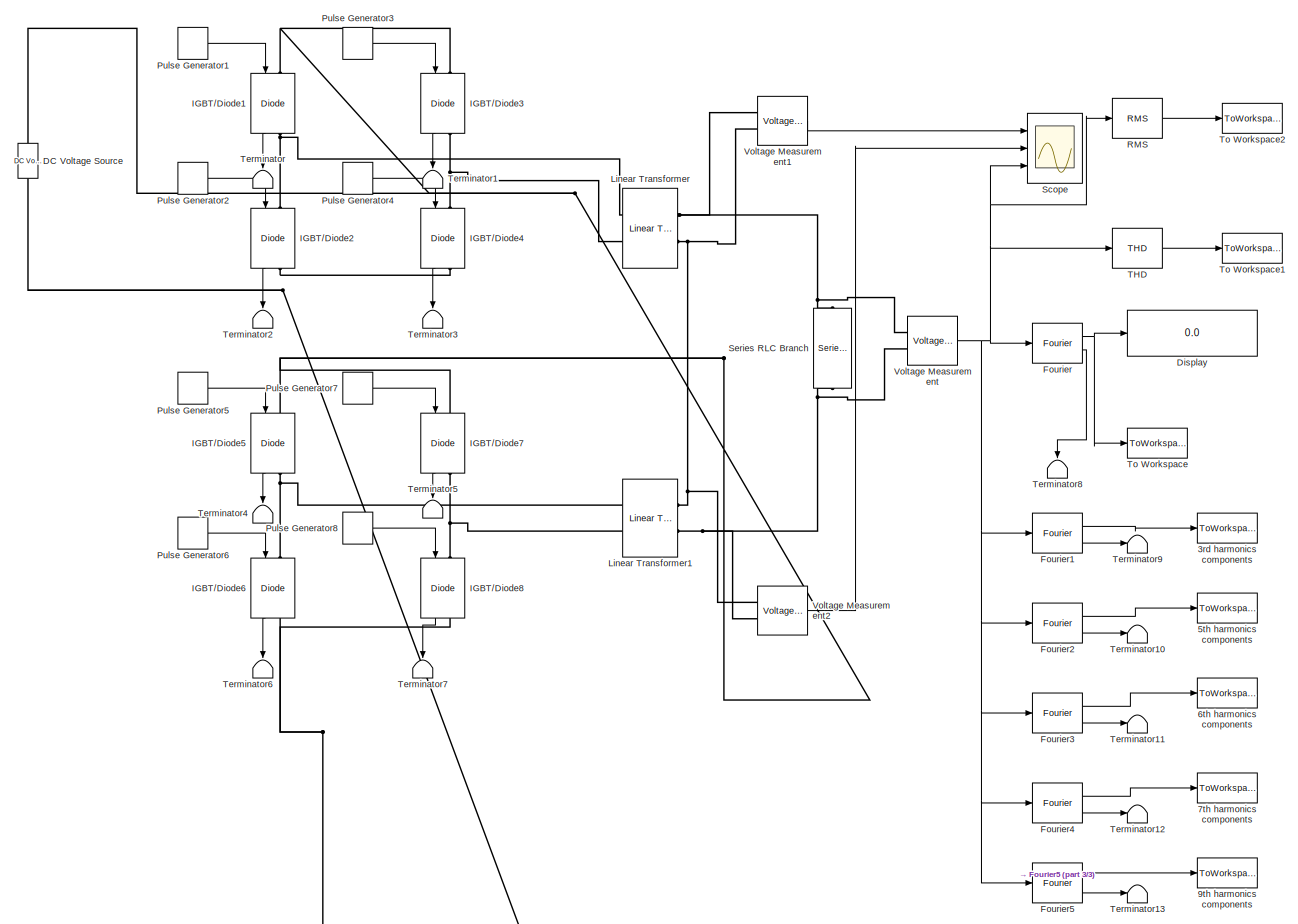
[diagram: root canvas - part 1/3, most of the canvas]
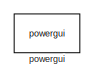
[diagram: root canvas - part 2/3, top left region]
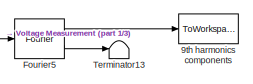
[diagram: root canvas - part 3/3, bottom right region]
MODEL slx_605fd69bc09b
KIND model
CONFIG AbsTol = auto
CONFIG EnableMultiTasking = on
CONFIG FixedStep = auto
CONFIG MaxStep = auto
CONFIG MinStep = auto
CONFIG RelTol = 1e-3
CONFIG SampleTimeConstraint = Unconstrained
CONFIG Solver = VariableStepAuto
CONFIG SolverName = VariableStepAuto
CONFIG StartTime = 0.0
CONFIG StopTime = 0.1
WORKSPACE source: mxarray member
WORKSPACE thit = 150
BLOCK [ToWorkspace] 3rd harmonics components
  FixptAsFi = on
  MaxDataPoints = inf
  Ports = [1]
  SampleTime = -1
  SaveFormat = Timeseries
  VariableName = simout1
BLOCK [ToWorkspace] 5th harmonics components
  FixptAsFi = on
  MaxDataPoints = inf
  Ports = [1]
  SampleTime = -1
  SaveFormat = Timeseries
  VariableName = simout2
BLOCK [ToWorkspace] 6th harmonics components
  FixptAsFi = on
  MaxDataPoints = inf
  Ports = [1]
  SampleTime = -1
  SaveFormat = Timeseries
  VariableName = simout3
BLOCK [ToWorkspace] 7th harmonics components
  FixptAsFi = on
  MaxDataPoints = inf
  Ports = [1]
  SampleTime = -1
  SaveFormat = Timeseries
  VariableName = simout4
BLOCK [ToWorkspace] 9th harmonics components
  FixptAsFi = on
  MaxDataPoints = inf
  Ports = [1]
  SampleTime = -1
  SaveFormat = Timeseries
  VariableName = simout5
BLOCK [Reference] DC Voltage Source  REF=powerlib/Electrical
Sources/DC Voltage Source
  Ports = [0, 0, 0, 0, 0, 1, 1]
  SourceBlock = powerlib/Electrical\nSources/DC Voltage Source
  SourceProductBaseCode = PS
  SourceProductName = Simscape Electrical
  SourceType = DC Voltage Source
BLOCK [Display] Display
  Decimation = 1
  Ports = [1]
BLOCK [Reference] Fourier  REF=powerlib_meascontrol/Measurements/Fourier
  Ports = [1, 2]
  SourceBlock = powerlib_meascontrol/Measurements/Fourier
  SourceProductBaseCode = PS
  SourceProductName = Simscape Electrical
  SourceType = Fourier
BLOCK [Reference] Fourier1  REF=powerlib_meascontrol/Measurements/Fourier
  Ports = [1, 2]
  SourceBlock = powerlib_meascontrol/Measurements/Fourier
  SourceProductBaseCode = PS
  SourceProductName = Simscape Electrical
  SourceType = Fourier
BLOCK [Reference] Fourier2  REF=powerlib_meascontrol/Measurements/Fourier
  Ports = [1, 2]
  SourceBlock = powerlib_meascontrol/Measurements/Fourier
  SourceProductBaseCode = PS
  SourceProductName = Simscape Electrical
  SourceType = Fourier
BLOCK [Reference] Fourier3  REF=powerlib_meascontrol/Measurements/Fourier
  Ports = [1, 2]
  SourceBlock = powerlib_meascontrol/Measurements/Fourier
  SourceProductBaseCode = PS
  SourceProductName = Simscape Electrical
  SourceType = Fourier
BLOCK [Reference] Fourier4  REF=powerlib_meascontrol/Measurements/Fourier
  Ports = [1, 2]
  SourceBlock = powerlib_meascontrol/Measurements/Fourier
  SourceProductBaseCode = PS
  SourceProductName = Simscape Electrical
  SourceType = Fourier
BLOCK [Reference] Fourier5  REF=powerlib_meascontrol/Measurements/Fourier
  Ports = [1, 2]
  SourceBlock = powerlib_meascontrol/Measurements/Fourier
  SourceProductBaseCode = PS
  SourceProductName = Simscape Electrical
  SourceType = Fourier
BLOCK [Reference] IGBT//Diode1  REF=powerlib/Power
Electronics/IGBT//Diode
  Ports = [1, 1, 0, 0, 0, 1, 1]
  SourceBlock = powerlib/Power\nElectronics/IGBT//Diode
  SourceProductBaseCode = PS
  SourceProductName = Simscape Electrical
  SourceType = IGBT/Diode
BLOCK [Reference] IGBT//Diode2  REF=powerlib/Power
Electronics/IGBT//Diode
  Ports = [1, 1, 0, 0, 0, 1, 1]
  SourceBlock = powerlib/Power\nElectronics/IGBT//Diode
  SourceProductBaseCode = PS
  SourceProductName = Simscape Electrical
  SourceType = IGBT/Diode
BLOCK [Reference] IGBT//Diode3  REF=powerlib/Power
Electronics/IGBT//Diode
  Ports = [1, 1, 0, 0, 0, 1, 1]
  SourceBlock = powerlib/Power\nElectronics/IGBT//Diode
  SourceProductBaseCode = PS
  SourceProductName = Simscape Electrical
  SourceType = IGBT/Diode
BLOCK [Reference] IGBT//Diode4  REF=powerlib/Power
Electronics/IGBT//Diode
  Ports = [1, 1, 0, 0, 0, 1, 1]
  SourceBlock = powerlib/Power\nElectronics/IGBT//Diode
  SourceProductBaseCode = PS
  SourceProductName = Simscape Electrical
  SourceType = IGBT/Diode
BLOCK [Reference] IGBT//Diode5  REF=powerlib/Power
Electronics/IGBT//Diode
  Ports = [1, 1, 0, 0, 0, 1, 1]
  SourceBlock = powerlib/Power\nElectronics/IGBT//Diode
  SourceProductBaseCode = PS
  SourceProductName = Simscape Electrical
  SourceType = IGBT/Diode
BLOCK [Reference] IGBT//Diode6  REF=powerlib/Power
Electronics/IGBT//Diode
  Ports = [1, 1, 0, 0, 0, 1, 1]
  SourceBlock = powerlib/Power\nElectronics/IGBT//Diode
  SourceProductBaseCode = PS
  SourceProductName = Simscape Electrical
  SourceType = IGBT/Diode
BLOCK [Reference] IGBT//Diode7  REF=powerlib/Power
Electronics/IGBT//Diode
  Ports = [1, 1, 0, 0, 0, 1, 1]
  SourceBlock = powerlib/Power\nElectronics/IGBT//Diode
  SourceProductBaseCode = PS
  SourceProductName = Simscape Electrical
  SourceType = IGBT/Diode
BLOCK [Reference] IGBT//Diode8  REF=powerlib/Power
Electronics/IGBT//Diode
  Ports = [1, 1, 0, 0, 0, 1, 1]
  SourceBlock = powerlib/Power\nElectronics/IGBT//Diode
  SourceProductBaseCode = PS
  SourceProductName = Simscape Electrical
  SourceType = IGBT/Diode
BLOCK [Reference] Linear Transformer  REF=powerlib/Elements/Linear Transformer
  Ports = [0, 0, 0, 0, 0, 2, 2]
  SourceBlock = powerlib/Elements/Linear Transformer
  SourceProductBaseCode = PS
  SourceProductName = Simscape Electrical
  SourceType = Linear Transformer
BLOCK [Reference] Linear Transformer1  REF=powerlib/Elements/Linear Transformer
  Ports = [0, 0, 0, 0, 0, 2, 2]
  SourceBlock = powerlib/Elements/Linear Transformer
  SourceProductBaseCode = PS
  SourceProductName = Simscape Electrical
  SourceType = Linear Transformer
BLOCK [DiscretePulseGenerator] Pulse Generator1
  Period = 0.02
  PhaseDelay = 0.02/360*0
  Ports = [0, 1]
  PulseType = Time based
  PulseWidth = 50
BLOCK [DiscretePulseGenerator] Pulse Generator2
  Period = 0.02
  PhaseDelay = 0.02/360*180
  Ports = [0, 1]
  PulseType = Time based
  PulseWidth = 50
BLOCK [DiscretePulseGenerator] Pulse Generator3
  Period = 0.02
  PhaseDelay = 0.02/360*60
  Ports = [0, 1]
  PulseType = Time based
  PulseWidth = 50
BLOCK [DiscretePulseGenerator] Pulse Generator4
  Period = 0.02
  PhaseDelay = 0.02/360*(180+60)
  Ports = [0, 1]
  PulseType = Time based
  PulseWidth = 50
BLOCK [DiscretePulseGenerator] Pulse Generator5
  Period = 0.02
  PhaseDelay = 0.02/360*(0+fai)
  Ports = [0, 1]
  PulseType = Time based
  PulseWidth = 50
BLOCK [DiscretePulseGenerator] Pulse Generator6
  Period = 0.02
  PhaseDelay = 0.02/360*(180+fai)
  Ports = [0, 1]
  PulseType = Time based
  PulseWidth = 50
BLOCK [DiscretePulseGenerator] Pulse Generator7
  Period = 0.02
  PhaseDelay = 0.02/360*(thit+fai)
  Ports = [0, 1]
  PulseType = Time based
  PulseWidth = 50
BLOCK [DiscretePulseGenerator] Pulse Generator8
  Period = 0.02
  PhaseDelay = 0.02/360*(180+thit+fai)
  Ports = [0, 1]
  PulseType = Time based
  PulseWidth = 50
BLOCK [Reference] RMS  REF=powerlib_meascontrol/Measurements/RMS
  Ports = [1, 1]
  SourceBlock = powerlib_meascontrol/Measurements/RMS
  SourceProductBaseCode = PS
  SourceProductName = Simscape Electrical
  SourceType = RMS
BLOCK [Scope] Scope
  Floating = off
  NumInputPorts = 3
  Ports = [3]
  ScopeSpecificationString = Simulink.scopes.TimeScopeBlockCfg('CurrentConfiguration', extmgr.ConfigurationSet(extmgr.Configuration('Core','General UI',true),extmgr.Configuration('Core','Source UI',true),extmgr.Configuration('Sources','WiredSimulink',true,'DataLogging',true,'DataLoggingSaveFormat','StructureWithTime','SampleTime','0.00001'),extmgr.Configuration('Visuals','Time Domain',true,'SerializedDisplays',{struct('MinYLi...<+2836ch>
BLOCK [Reference] Series RLC Branch  REF=powerlib/Elements/Series RLC Branch
  Ports = [0, 0, 0, 0, 0, 1, 1]
  SourceBlock = powerlib/Elements/Series RLC Branch
  SourceProductBaseCode = PS
  SourceProductName = Simscape Electrical
  SourceType = Series RLC Branch
BLOCK [Reference] THD  REF=powerlib_meascontrol/Measurements/THD
  Ports = [1, 1]
  SourceBlock = powerlib_meascontrol/Measurements/THD
  SourceProductBaseCode = PS
  SourceProductName = Simscape Electrical
  SourceType = THD
BLOCK [Terminator] Terminator
BLOCK [Terminator] Terminator1
BLOCK [Terminator] Terminator10
BLOCK [Terminator] Terminator11
BLOCK [Terminator] Terminator12
BLOCK [Terminator] Terminator13
BLOCK [Terminator] Terminator2
BLOCK [Terminator] Terminator3
BLOCK [Terminator] Terminator4
BLOCK [Terminator] Terminator5
BLOCK [Terminator] Terminator6
BLOCK [Terminator] Terminator7
BLOCK [Terminator] Terminator8
BLOCK [Terminator] Terminator9
BLOCK [ToWorkspace] To Workspace
  FixptAsFi = on
  MaxDataPoints = inf
  Ports = [1]
  SampleTime = -1
  SaveFormat = Timeseries
  VariableName = simout
BLOCK [ToWorkspace] To Workspace1
  FixptAsFi = on
  MaxDataPoints = inf
  Ports = [1]
  SampleTime = -1
  SaveFormat = Timeseries
  VariableName = simout_THD
BLOCK [ToWorkspace] To Workspace2
  FixptAsFi = on
  MaxDataPoints = inf
  Ports = [1]
  SampleTime = -1
  SaveFormat = Timeseries
  VariableName = simout_udrms
BLOCK [Reference] Voltage Measurement  REF=powerlib/Measurements/Voltage Measurement
  Ports = [0, 1, 0, 0, 0, 2]
  SourceBlock = powerlib/Measurements/Voltage Measurement
  SourceProductBaseCode = PS
  SourceProductName = Simscape Electrical
  SourceType = Voltage Measurement
  UserDataPersistent = on
BLOCK [Reference] Voltage Measurement1  REF=powerlib/Measurements/Voltage Measurement
  Ports = [0, 1, 0, 0, 0, 2]
  SourceBlock = powerlib/Measurements/Voltage Measurement
  SourceProductBaseCode = PS
  SourceProductName = Simscape Electrical
  SourceType = Voltage Measurement
  UserDataPersistent = on
BLOCK [Reference] Voltage Measurement2  REF=powerlib/Measurements/Voltage Measurement
  Ports = [0, 1, 0, 0, 0, 2]
  SourceBlock = powerlib/Measurements/Voltage Measurement
  SourceProductBaseCode = PS
  SourceProductName = Simscape Electrical
  SourceType = Voltage Measurement
  UserDataPersistent = on
BLOCK [Reference] powergui  REF=powerlib/powergui
  Ports = []
  Priority = 1
  SourceBlock = powerlib/powergui
  SourceProductBaseCode = PS
  SourceProductName = Simscape Electrical
  SourceType = PSB option menu block
LINE Fourier1:1 -> 3rd harmonics components:1
LINE Fourier1:2 -> Terminator9:1
LINE Fourier2:1 -> 5th harmonics components:1
LINE Fourier2:2 -> Terminator10:1
LINE Fourier3:1 -> 6th harmonics components:1
LINE Fourier3:2 -> Terminator11:1
LINE Fourier4:1 -> 7th harmonics components:1
LINE Fourier4:2 -> Terminator12:1
LINE Fourier5:1 -> 9th harmonics components:1
LINE Fourier5:2 -> Terminator13:1
NET Fourier:1 -> Display:1, To Workspace:1
LINE Fourier:2 -> Terminator8:1
LINE IGBT//Diode1:1 -> Terminator:1
LINE IGBT//Diode2:1 -> Terminator2:1
LINE IGBT//Diode3:1 -> Terminator1:1
LINE IGBT//Diode4:1 -> Terminator3:1
LINE IGBT//Diode5:1 -> Terminator4:1
LINE IGBT//Diode6:1 -> Terminator6:1
LINE IGBT//Diode7:1 -> Terminator5:1
LINE IGBT//Diode8:1 -> Terminator7:1
LINE Pulse Generator1:1 -> IGBT//Diode1:1
LINE Pulse Generator2:1 -> IGBT//Diode2:1
LINE Pulse Generator3:1 -> IGBT//Diode3:1
LINE Pulse Generator4:1 -> IGBT//Diode4:1
LINE Pulse Generator5:1 -> IGBT//Diode5:1
LINE Pulse Generator6:1 -> IGBT//Diode6:1
LINE Pulse Generator7:1 -> IGBT//Diode7:1
LINE Pulse Generator8:1 -> IGBT//Diode8:1
LINE RMS:1 -> To Workspace2:1
LINE THD:1 -> To Workspace1:1
LINE Voltage Measurement1:1 -> Scope:1
LINE Voltage Measurement2:1 -> Scope:2
NET Voltage Measurement:1 -> Fourier1:1, Fourier2:1, Fourier3:1, Fourier4:1, Fourier5:1, Fourier:1, RMS:1, Scope:3, THD:1
PNET net1: DC Voltage Source:LConn1 -- IGBT//Diode2:RConn1 -- IGBT//Diode4:RConn1 -- IGBT//Diode6:RConn1 -- IGBT//Diode8:RConn1
PNET net2: DC Voltage Source:RConn1 -- IGBT//Diode1:LConn1 -- IGBT//Diode3:LConn1 -- IGBT//Diode5:LConn1 -- IGBT//Diode7:LConn1
PNET net3: IGBT//Diode1:RConn1 -- IGBT//Diode2:LConn1 -- Linear Transformer:LConn1
PNET net4: IGBT//Diode3:RConn1 -- IGBT//Diode4:LConn1 -- Linear Transformer:LConn2
PNET net5: IGBT//Diode5:RConn1 -- IGBT//Diode6:LConn1 -- Linear Transformer1:LConn1
PNET net6: IGBT//Diode7:RConn1 -- IGBT//Diode8:LConn1 -- Linear Transformer1:LConn2
PNET net7: Linear Transformer1:RConn1 -- Linear Transformer:RConn2 -- Voltage Measurement1:LConn2 -- Voltage Measurement2:LConn1
PNET net8: Linear Transformer1:RConn2 -- Series RLC Branch:RConn1 -- Voltage Measurement2:LConn2 -- Voltage Measurement:LConn2
PNET net9: Linear Transformer:RConn1 -- Series RLC Branch:LConn1 -- Voltage Measurement1:LConn1 -- Voltage Measurement:LConn1
note: NET lines group one-source signal fan-out (src -> all destinations, sorted); 1:1 wires keep LINE; PNET lines group multi-terminal physical nets as a canonical sorted terminal list (undirected conserving connections); 2-terminal nets keep the pairwise PLINE form
